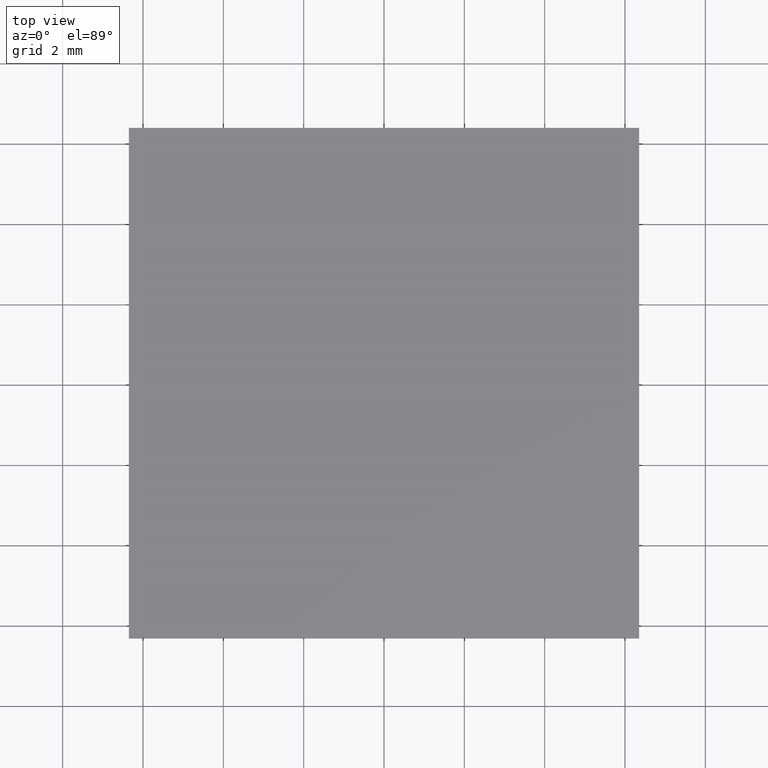
[diagram: clean part render]
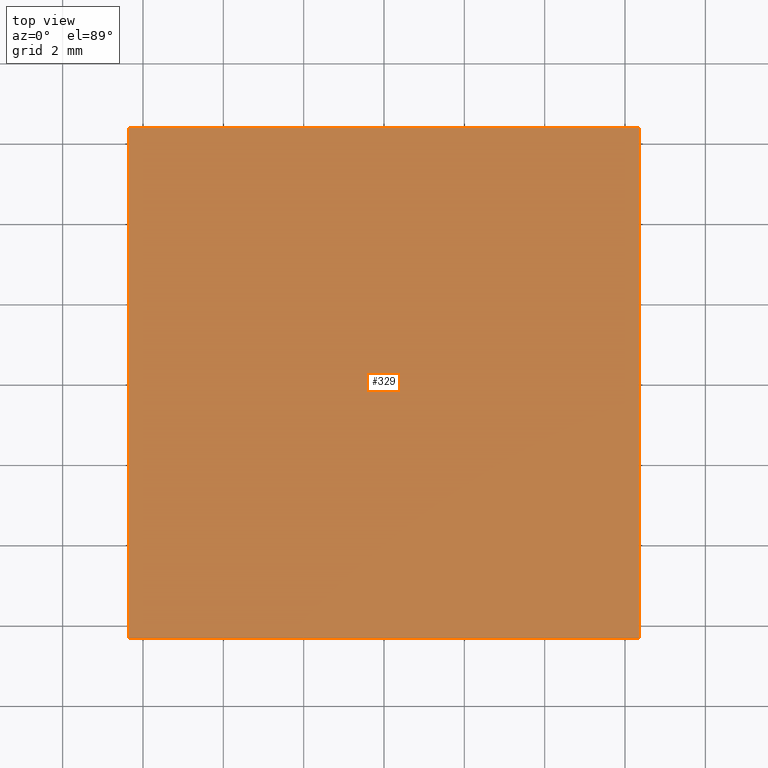
[diagram: same view with one face highlighted and labeled with its STEP entity id]
A machine part, top view. The second image highlights one B-rep face of the part: STEP entity #329.
In plain terms, the highlighted face is a freeform B-spline surface patch.
Its self-contained STEP definition (entity closure, byte-faithful):
#294=CARTESIAN_POINT('',(-6.984364856166421,-6.984364856166422,3.0));
#295=CARTESIAN_POINT('',(6.984365310353813,-6.984364856166422,3.0));
#296=CARTESIAN_POINT('',(-6.984364856166421,6.984365310353814,3.0));
#297=CARTESIAN_POINT('',(6.984365310353814,6.984365310353814,3.0));
#298=B_SPLINE_SURFACE_WITH_KNOTS('',1,1,((#294,#296),(#295,#297)),.UNSPECIFIED.,.F.,.F.,.U.,(2,2),(2,2),(0.0,13.968730166520240),(0.0,13.968730166520240),.UNSPECIFIED.);
#299=CARTESIAN_POINT('',(-6.350000000000000,-6.350000000000000,3.0));
#300=VERTEX_POINT('',#299);
#301=CARTESIAN_POINT('',(6.350000000000000,-6.350000000000000,3.0));
#302=VERTEX_POINT('',#301);
#303=CARTESIAN_POINT('',(-6.350000000000000,-6.350000000000000,3.0));
#304=CARTESIAN_POINT('',(6.350000000000000,-6.350000000000000,3.0));
#305=QUASI_UNIFORM_CURVE('',1,(#303,#304),.UNSPECIFIED.,.F.,.U.);
#306=EDGE_CURVE('',#300,#302,#305,.T.);
#307=ORIENTED_EDGE('',*,*,#306,.T.);
#308=CARTESIAN_POINT('',(6.350000000000000,6.350000000000000,3.0));
#309=VERTEX_POINT('',#308);
#310=CARTESIAN_POINT('',(6.350000000000000,-6.350000000000000,3.0));
#311=CARTESIAN_POINT('',(6.350000000000000,6.350000000000000,3.0));
#312=QUASI_UNIFORM_CURVE('',1,(#310,#311),.UNSPECIFIED.,.F.,.U.);
#313=EDGE_CURVE('',#302,#309,#312,.T.);
#314=ORIENTED_EDGE('',*,*,#313,.T.);
#315=CARTESIAN_POINT('',(-6.350000000000000,6.350000000000000,3.0));
#316=VERTEX_POINT('',#315);
#317=CARTESIAN_POINT('',(6.350000000000000,6.350000000000000,3.0));
#318=CARTESIAN_POINT('',(-6.350000000000000,6.350000000000000,3.0));
#319=QUASI_UNIFORM_CURVE('',1,(#317,#318),.UNSPECIFIED.,.F.,.U.);
#320=EDGE_CURVE('',#309,#316,#319,.T.);
#321=ORIENTED_EDGE('',*,*,#320,.T.);
#322=CARTESIAN_POINT('',(-6.350000000000000,6.350000000000000,3.0));
#323=CARTESIAN_POINT('',(-6.350000000000000,-6.350000000000000,3.0));
#324=QUASI_UNIFORM_CURVE('',1,(#322,#323),.UNSPECIFIED.,.F.,.U.);
#325=EDGE_CURVE('',#316,#300,#324,.T.);
#326=ORIENTED_EDGE('',*,*,#325,.T.);
#327=EDGE_LOOP('',(#307,#314,#321,#326));
#328=FACE_OUTER_BOUND('',#327,.T.);
#329=ADVANCED_FACE('',(#328),#298,.T.);